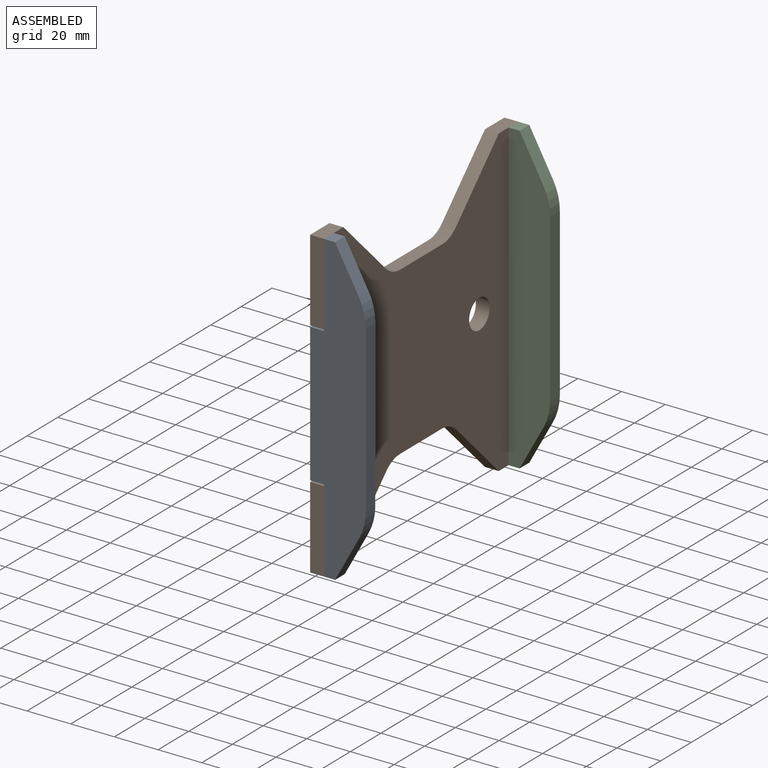
[diagram: assembled view]
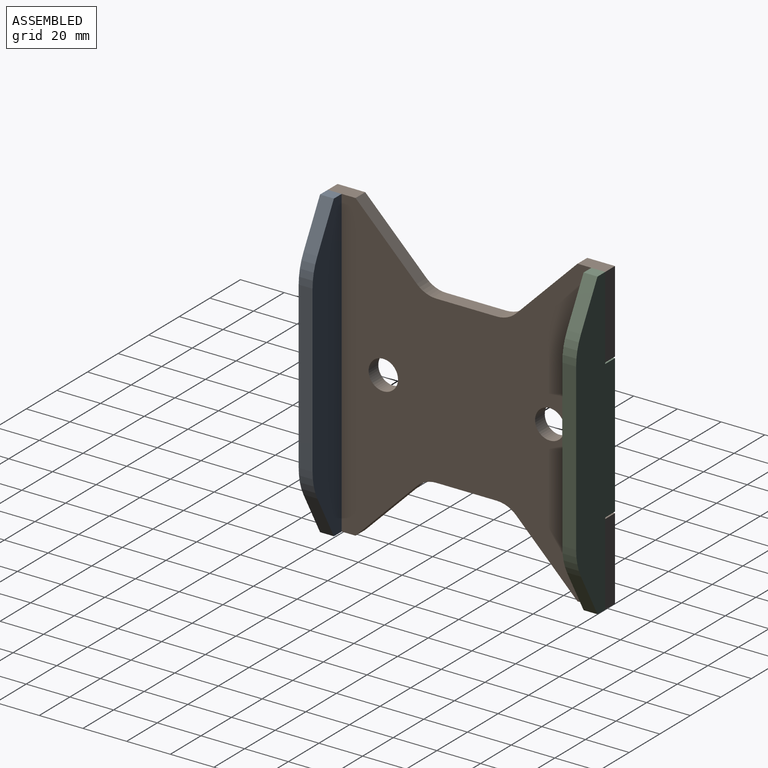
[diagram: assembled view, second angle]
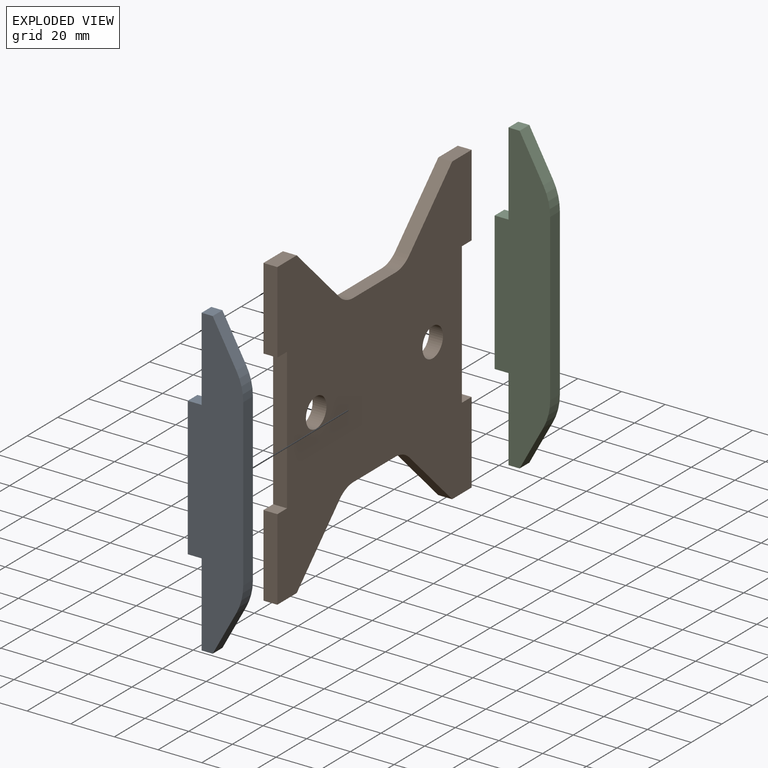
[diagram: exploded view]
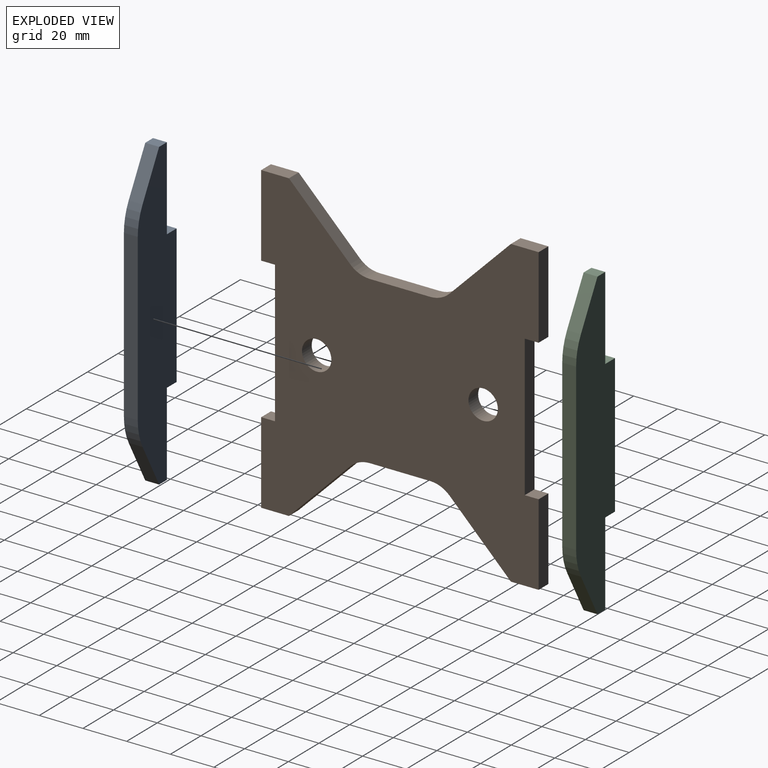
[diagram: exploded view, second angle]
ASSEMBLY  parts=3 mates=2
PART A: 14 faces, bbox 25.4x6.4x139.7 mm
  f0: plane 63.5x6.35mm, normal (-1,0,0), area 403.2mm2, adj f1,f9,f10,f11
  f1: plane 6.35x6.35mm, normal (0,0,-1), area 40.3mm2, adj f0,f2,f10,f11
  f2: plane 38.1x6.35mm, normal (-1,0,0), area 241.9mm2, adj f1,f3,f10,f11
  f3: plane 6.35x5.08mm, normal (0,0,-1), area 32.3mm2, adj f2,f4,f10,f11
  f4: plane 19.68x10.83mm, normal (0.88,0,-0.48), area 142.6mm2, adj f3,f10,f11,f12
  f5: plane 75.85x6.35mm, normal (1,0,0), area 481.7mm2, adj f10,f11,f12,f13
  f6: plane 19.68x10.83mm, normal (0.88,0,0.48), area 142.6mm2, adj f7,f10,f11,f13
  f7: plane 6.35x5.08mm, normal (0,0,1), area 32.3mm2, adj f6,f8,f10,f11
  f8: plane 38.1x6.35mm, normal (-1,0,0), area 241.9mm2, adj f7,f9,f10,f11
  f9: plane 6.35x6.35mm, normal (0,0,1), area 40.3mm2, adj f0,f8,f10,f11
  f10: plane 139.7x25.4mm, normal (0,-1,0), area 2702.7mm2, adj f0,f1,f2,f3,f4,f5,f6,f7
  f11: plane 139.7x25.4mm, normal (0,1,0), area 2702.7mm2, adj f0,f1,f2,f3,f4,f5,f6,f7
  f12: cylinder r=25.4mm len=12.24mm, axis (0,1,0), area 81.1mm2, adj f4,f5,f10,f11
  f13: cylinder r=25.4mm len=12.24mm, axis (0,1,0), area 81.1mm2, adj f5,f6,f10,f11
PART B: 28 faces, bbox 6.4x127x139.7 mm
  f0: plane 37.47x6.35mm, normal (0,1,0), area 237.9mm2, adj f3,f8,f9,f25
  f1: plane 37.47x6.35mm, normal (0,-1,0), area 237.9mm2, adj f5,f8,f9,f22
  f2: plane 12.7x6.35mm, normal (0,0,-1), area 80.6mm2, adj f4,f8,f9,f20
  f3: plane 12.7x6.35mm, normal (0,0,1), area 80.6mm2, adj f0,f8,f9,f12
  f4: plane 37.47x6.35mm, normal (0,1,0), area 237.9mm2, adj f2,f8,f9,f26
  f5: plane 12.7x6.35mm, normal (0,0,1), area 80.6mm2, adj f1,f8,f9,f16
  f6: plane 37.47x6.35mm, normal (0,-1,0), area 237.9mm2, adj f7,f8,f9,f24
  f7: plane 12.7x6.35mm, normal (0,0,-1), area 80.6mm2, adj f6,f8,f9,f21
  f8: plane 139.7x127mm, normal (1,0,0), area 12213.1mm2, adj f0,f1,f2,f3,f4,f5,f6,f7
  f9: plane 139.7x127mm, normal (-1,0,0), area 12213.1mm2, adj f0,f1,f2,f3,f4,f5,f6,f7
  f10: cylinder r=6.73mm len=13.46mm, axis (1,0,0), area 268.6mm2, adj f8,f9
  f11: cylinder r=6.73mm len=13.46mm, axis (1,0,0), area 268.6mm2, adj f8,f9
  f12: plane 28.03x28.03mm, normal (0,-0.71,0.71), area 251.7mm2, adj f3,f8,f9,f13
  f13: cylinder r=12.7mm len=8.98mm, axis (1,0,0), area 63.3mm2, adj f8,f9,f12,f14
  f14: plane 27.58x6.35mm, normal (0,0,1), area 175.1mm2, adj f8,f9,f13,f15
  f15: cylinder r=12.7mm len=8.98mm, axis (1,0,0), area 63.3mm2, adj f8,f9,f14,f16
  f16: plane 28.03x28.03mm, normal (0,0.71,0.71), area 251.7mm2, adj f5,f8,f9,f15
  f17: cylinder r=12.7mm len=8.98mm, axis (1,0,0), area 63.3mm2, adj f8,f9,f18,f21
  f18: plane 27.58x6.35mm, normal (0,0,-1), area 175.1mm2, adj f8,f9,f17,f19
  f19: cylinder r=12.7mm len=8.98mm, axis (1,0,0), area 63.3mm2, adj f8,f9,f18,f20
  f20: plane 28.03x28.03mm, normal (0,-0.71,-0.71), area 251.7mm2, adj f2,f8,f9,f19
  f21: plane 28.03x28.03mm, normal (0,0.71,-0.71), area 251.7mm2, adj f7,f8,f9,f17
  f22: plane 6.35x6.35mm, normal (0,0,-1), area 40.3mm2, adj f1,f8,f9,f23
  f23: plane 64.77x6.35mm, normal (0,-1,0), area 411.3mm2, adj f8,f9,f22,f24
  f24: plane 6.35x6.35mm, normal (0,0,1), area 40.3mm2, adj f6,f8,f9,f23
  f25: plane 6.35x6.35mm, normal (0,0,-1), area 40.3mm2, adj f0,f8,f9,f27
  f26: plane 6.35x6.35mm, normal (0,0,1), area 40.3mm2, adj f4,f8,f9,f27
  f27: plane 64.77x6.35mm, normal (0,1,0), area 411.3mm2, adj f8,f9,f25,f26
PART C: same geometry as A
PLACE A t=(0,-57.15,0)mm
PLACE B at identity fixed
PLACE C t=(0,63.5,0)mm
MATE fastened A.f11 <-> B.f23  axis (0,1,0) through (0,-57.15,0)mm
MATE fastened C.f10 <-> B.f27  axis (0,-1,0) through (0,57.15,0)mm
